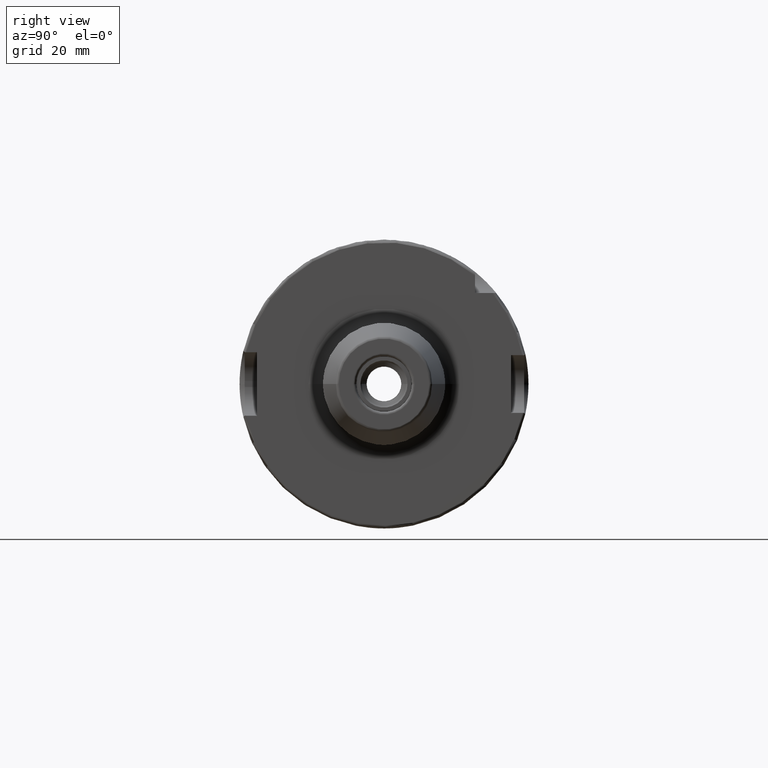
[diagram: clean part render]
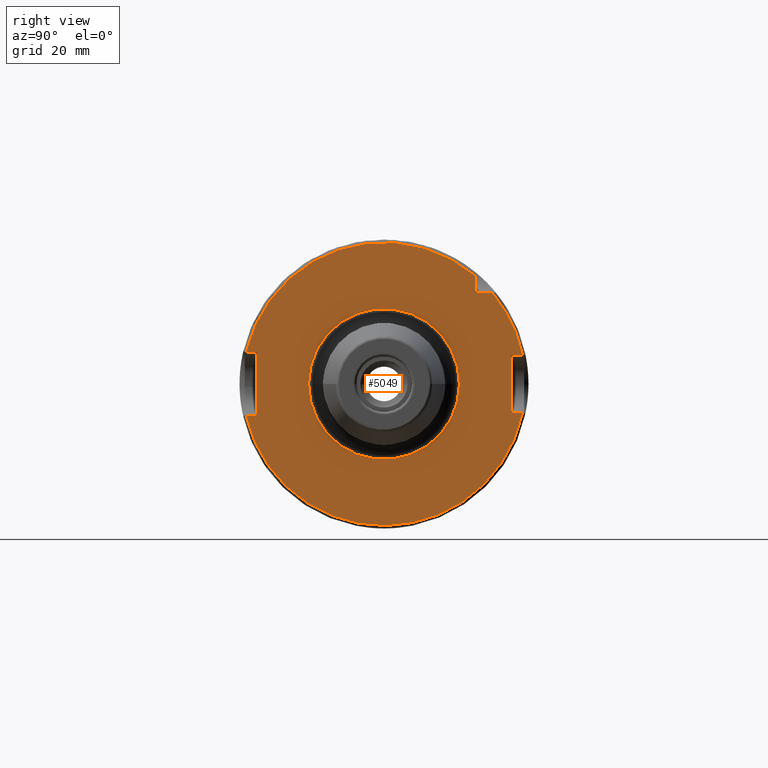
[diagram: same view with one face highlighted and labeled with its STEP entity id]
A machine part, right view. The second image highlights one B-rep face of the part: STEP entity #5049.
In plain terms, the highlighted planar face has unit normal (1, 0, 0).
Its self-contained STEP definition (entity closure, byte-faithful):
#1484=CARTESIAN_POINT('',(2.9E1,0.E0,0.E0));
#1485=DIRECTION('',(1.E0,0.E0,0.E0));
#1486=DIRECTION('',(0.E0,-9.744764396990E-1,-2.244897959184E-1));
#1487=AXIS2_PLACEMENT_3D('',#1484,#1485,#1486);
#1627=CARTESIAN_POINT('',(2.9E1,4.796873982085E1,-1.E1));
#1645=DIRECTION('',(0.E0,1.E0,0.E0));
#1646=VECTOR('',#1645,3.749345545253E0);
#1647=CARTESIAN_POINT('',(2.9E1,-4.774934554525E1,-1.1E1));
#1648=LINE('',#1647,#1646);
#1649=DIRECTION('',(0.E0,0.E0,1.E0));
#1650=VECTOR('',#1649,2.2E1);
#1651=CARTESIAN_POINT('',(2.9E1,-4.4E1,-1.1E1));
#1652=LINE('',#1651,#1650);
#1653=DIRECTION('',(0.E0,1.E0,0.E0));
#1654=VECTOR('',#1653,3.749345545253E0);
#1655=CARTESIAN_POINT('',(2.9E1,-4.774934554525E1,1.1E1));
#1656=LINE('',#1655,#1654);
#1657=DIRECTION('',(0.E0,0.E0,-1.E0));
#1658=VECTOR('',#1657,6.033318531673E0);
#1659=CARTESIAN_POINT('',(2.9E1,3.15E1,3.753331853167E1));
#1660=LINE('',#1659,#1658);
#1661=DIRECTION('',(0.E0,-1.E0,0.E0));
#1662=VECTOR('',#1661,6.033318531673E0);
#1663=CARTESIAN_POINT('',(2.9E1,3.753331853167E1,3.15E1));
#1664=LINE('',#1663,#1662);
#1665=DIRECTION('',(0.E0,-1.E0,0.E0));
#1666=VECTOR('',#1665,3.968739820846E0);
#1667=CARTESIAN_POINT('',(2.9E1,4.796873982085E1,1.E1));
#1668=LINE('',#1667,#1666);
#1669=DIRECTION('',(0.E0,0.E0,-1.E0));
#1670=VECTOR('',#1669,2.E1);
#1671=CARTESIAN_POINT('',(2.9E1,4.4E1,1.E1));
#1672=LINE('',#1671,#1670);
#1673=DIRECTION('',(0.E0,-1.E0,0.E0));
#1674=VECTOR('',#1673,3.968739820846E0);
#1675=CARTESIAN_POINT('',(2.9E1,4.796873982085E1,-1.E1));
#1676=LINE('',#1675,#1674);
#1687=CARTESIAN_POINT('',(2.9E1,0.E0,0.E0));
#1688=DIRECTION('',(1.E0,0.E0,0.E0));
#1689=DIRECTION('',(0.E0,1.E0,0.E0));
#1690=AXIS2_PLACEMENT_3D('',#1687,#1688,#1689);
#1692=CARTESIAN_POINT('',(2.9E1,0.E0,0.E0));
#1693=DIRECTION('',(1.E0,0.E0,0.E0));
#1694=DIRECTION('',(0.E0,-1.E0,0.E0));
#1695=AXIS2_PLACEMENT_3D('',#1692,#1693,#1694);
#1711=CARTESIAN_POINT('',(2.9E1,-4.774934554525E1,-1.1E1));
#1823=CARTESIAN_POINT('',(2.9E1,3.753331853167E1,3.15E1));
#1837=CARTESIAN_POINT('',(2.9E1,0.E0,0.E0));
#1838=DIRECTION('',(1.E0,0.E0,0.E0));
#1839=DIRECTION('',(0.E0,9.789538738948E-1,2.040816326531E-1));
#1840=AXIS2_PLACEMENT_3D('',#1837,#1838,#1839);
#1846=CARTESIAN_POINT('',(2.9E1,4.796873982085E1,1.E1));
#1969=CARTESIAN_POINT('',(2.9E1,3.15E1,3.753331853167E1));
#1985=CARTESIAN_POINT('',(2.9E1,0.E0,0.E0));
#1986=DIRECTION('',(1.E0,0.E0,0.E0));
#1987=DIRECTION('',(0.E0,6.428571428571E-1,7.659860924831E-1));
#1988=AXIS2_PLACEMENT_3D('',#1985,#1986,#1987);
#1990=CARTESIAN_POINT('',(2.9E1,-4.774934554525E1,1.1E1));
#2836=CARTESIAN_POINT('',(2.9E1,4.4E1,1.E1));
#2837=CARTESIAN_POINT('',(2.9E1,4.4E1,-1.E1));
#2838=VERTEX_POINT('',#2836);
#2839=VERTEX_POINT('',#2837);
#2860=CARTESIAN_POINT('',(2.9E1,-4.4E1,-1.1E1));
#2861=CARTESIAN_POINT('',(2.9E1,-4.4E1,1.1E1));
#2862=VERTEX_POINT('',#2860);
#2863=VERTEX_POINT('',#2861);
#2914=CARTESIAN_POINT('',(2.9E1,3.15E1,3.15E1));
#2916=VERTEX_POINT('',#2914);
#3141=VERTEX_POINT('',#1711);
#3142=VERTEX_POINT('',#1627);
#3147=VERTEX_POINT('',#1846);
#3148=VERTEX_POINT('',#1823);
#3151=VERTEX_POINT('',#1969);
#3152=VERTEX_POINT('',#1990);
#3219=CARTESIAN_POINT('',(2.9E1,2.610969713780E1,0.E0));
#3220=CARTESIAN_POINT('',(2.9E1,-2.610969713780E1,0.E0));
#3221=VERTEX_POINT('',#3219);
#3222=VERTEX_POINT('',#3220);
#5016=CARTESIAN_POINT('',(2.9E1,0.E0,0.E0));
#5017=DIRECTION('',(1.E0,0.E0,0.E0));
#5018=DIRECTION('',(0.E0,0.E0,1.E0));
#5019=AXIS2_PLACEMENT_3D('',#5016,#5017,#5018);
#5020=PLANE('',#5019);
#5021=ORIENTED_EDGE('',*,*,#4768,.F.);
#5023=ORIENTED_EDGE('',*,*,#5022,.T.);
#5025=ORIENTED_EDGE('',*,*,#5024,.T.);
#5027=ORIENTED_EDGE('',*,*,#5026,.F.);
#5029=ORIENTED_EDGE('',*,*,#5028,.F.);
#5031=ORIENTED_EDGE('',*,*,#5030,.T.);
#5033=ORIENTED_EDGE('',*,*,#5032,.F.);
#5035=ORIENTED_EDGE('',*,*,#5034,.F.);
#5037=ORIENTED_EDGE('',*,*,#5036,.T.);
#5039=ORIENTED_EDGE('',*,*,#5038,.T.);
#5040=ORIENTED_EDGE('',*,*,#4996,.F.);
#5041=EDGE_LOOP('',(#5021,#5023,#5025,#5027,#5029,#5031,#5033,#5035,#5037,#5039,
#5040));
#5042=FACE_OUTER_BOUND('',#5041,.F.);
#5044=ORIENTED_EDGE('',*,*,#5043,.T.);
#5046=ORIENTED_EDGE('',*,*,#5045,.T.);
#5047=EDGE_LOOP('',(#5044,#5046));
#5048=FACE_BOUND('',#5047,.F.);
#5049=ADVANCED_FACE('',(#5042,#5048),#5020,.T.);
#1488=CIRCLE('',#1487,4.9E1);
#1691=CIRCLE('',#1690,2.610969713780E1);
#1696=CIRCLE('',#1695,2.610969713780E1);
#1841=CIRCLE('',#1840,4.9E1);
#1989=CIRCLE('',#1988,4.9E1);
#4768=EDGE_CURVE('',#3141,#3142,#1488,.T.);
#4996=EDGE_CURVE('',#3142,#2839,#1676,.T.);
#5022=EDGE_CURVE('',#3141,#2862,#1648,.T.);
#5024=EDGE_CURVE('',#2862,#2863,#1652,.T.);
#5026=EDGE_CURVE('',#3152,#2863,#1656,.T.);
#5028=EDGE_CURVE('',#3151,#3152,#1989,.T.);
#5030=EDGE_CURVE('',#3151,#2916,#1660,.T.);
#5032=EDGE_CURVE('',#3148,#2916,#1664,.T.);
#5034=EDGE_CURVE('',#3147,#3148,#1841,.T.);
#5036=EDGE_CURVE('',#3147,#2838,#1668,.T.);
#5038=EDGE_CURVE('',#2838,#2839,#1672,.T.);
#5043=EDGE_CURVE('',#3221,#3222,#1691,.T.);
#5045=EDGE_CURVE('',#3222,#3221,#1696,.T.);